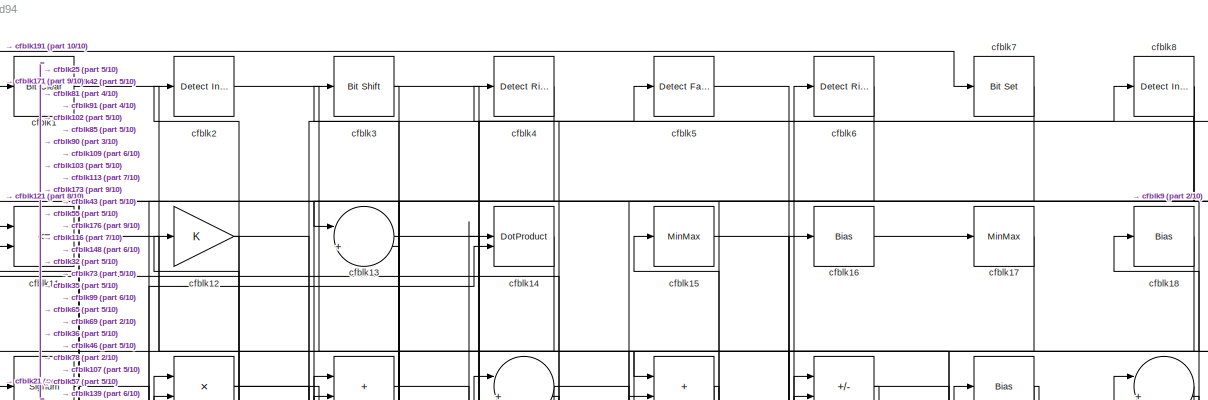
[diagram: root canvas - part 1/10, full width, top band]
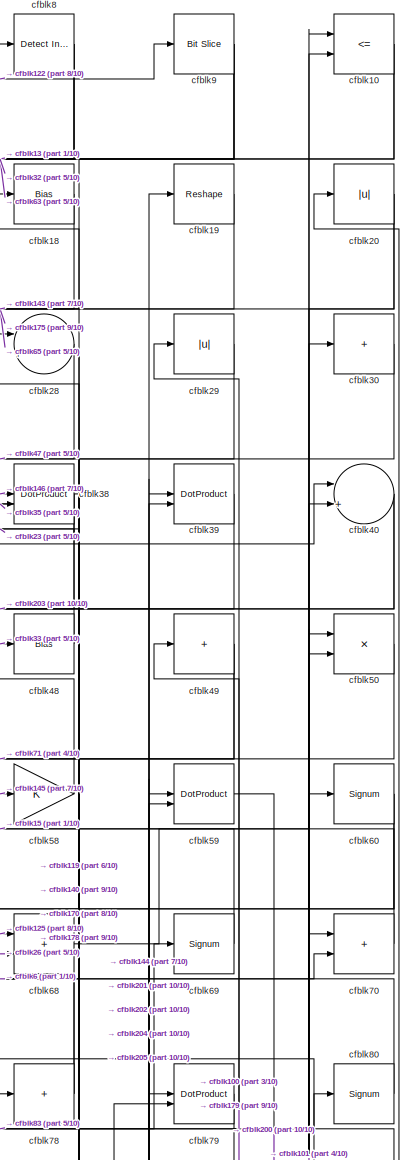
[diagram: root canvas - part 2/10, top right region]
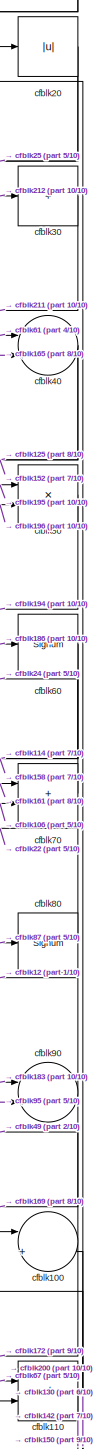
[diagram: root canvas - part 3/10, top right region]
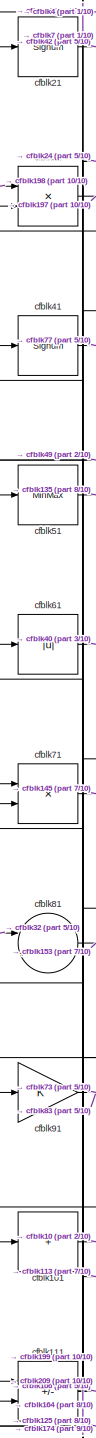
[diagram: root canvas - part 4/10, top left region]
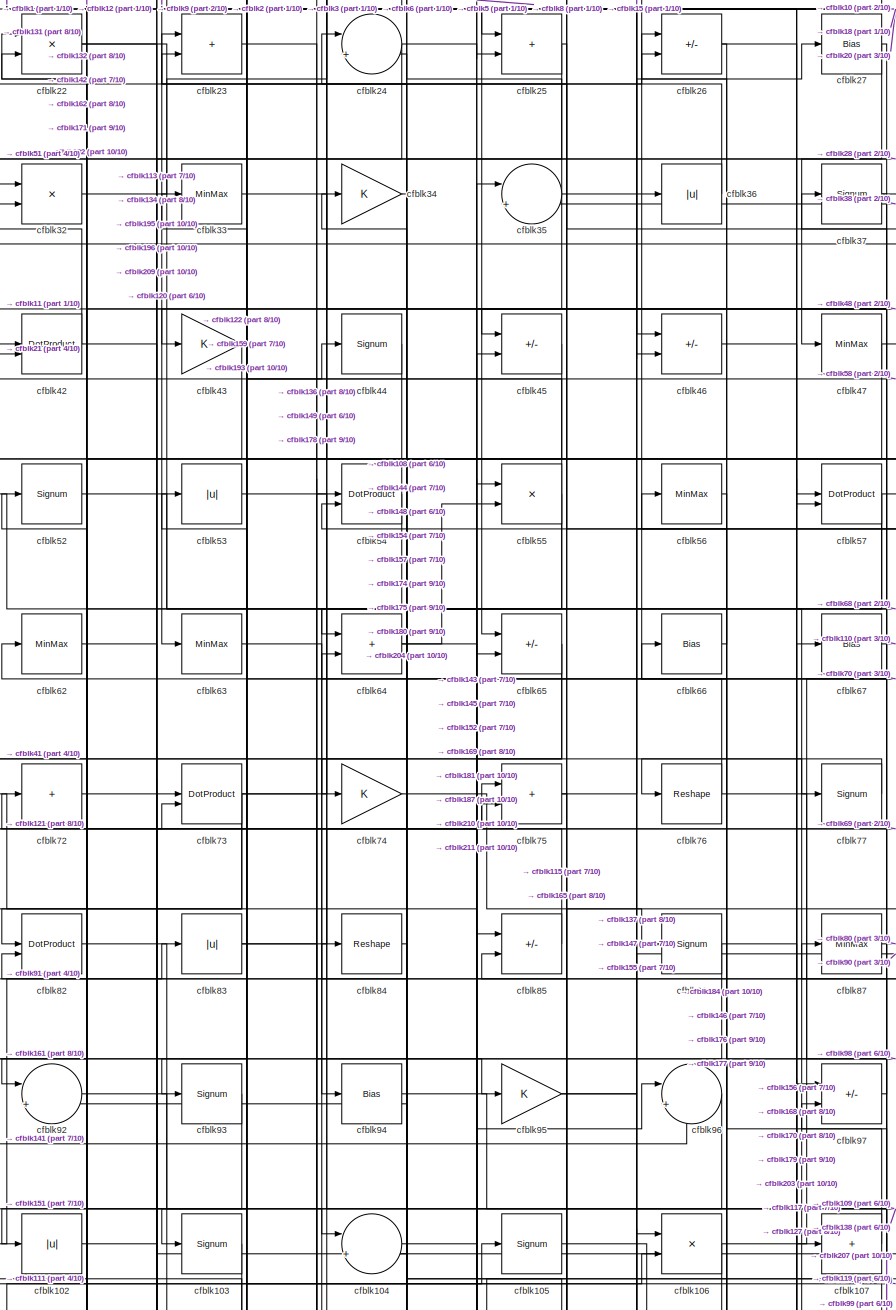
[diagram: root canvas - part 5/10, top center region]
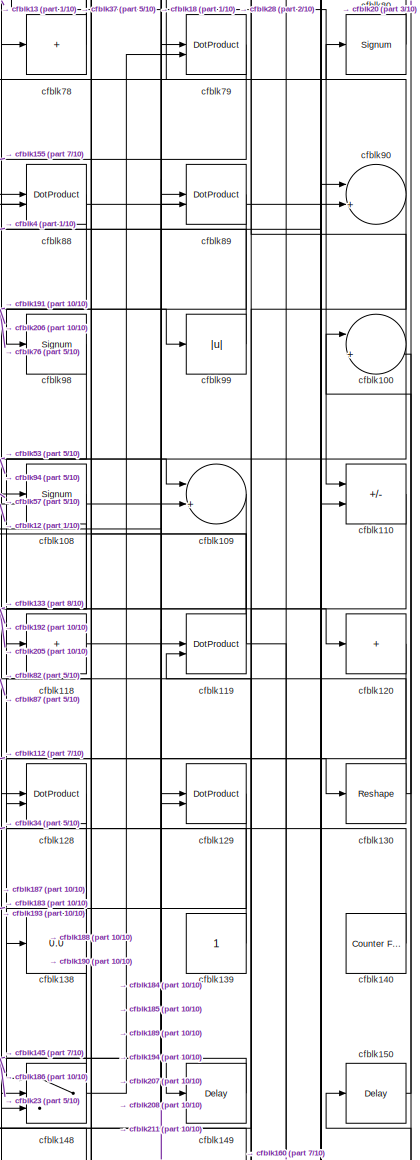
[diagram: root canvas - part 6/10, middle right region]
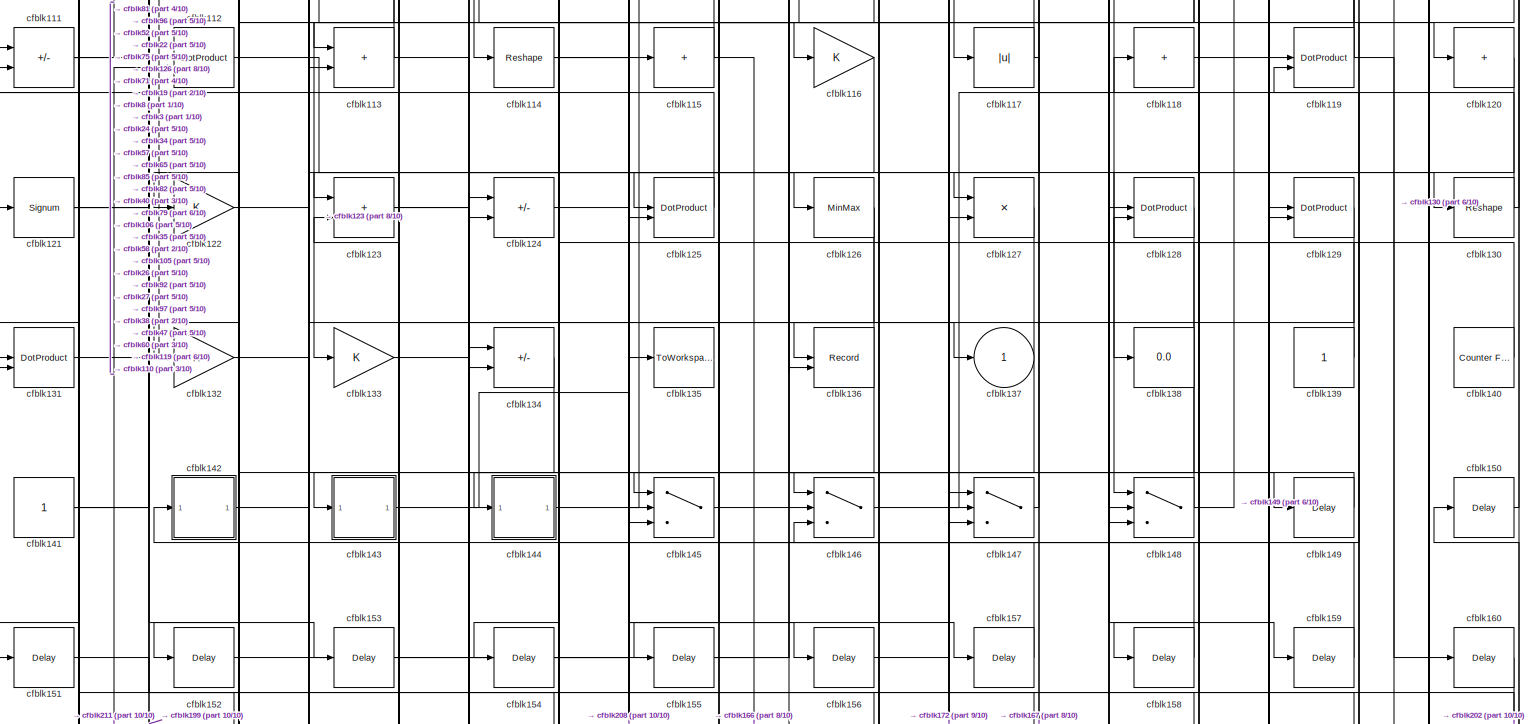
[diagram: root canvas - part 7/10, full width, middle band]
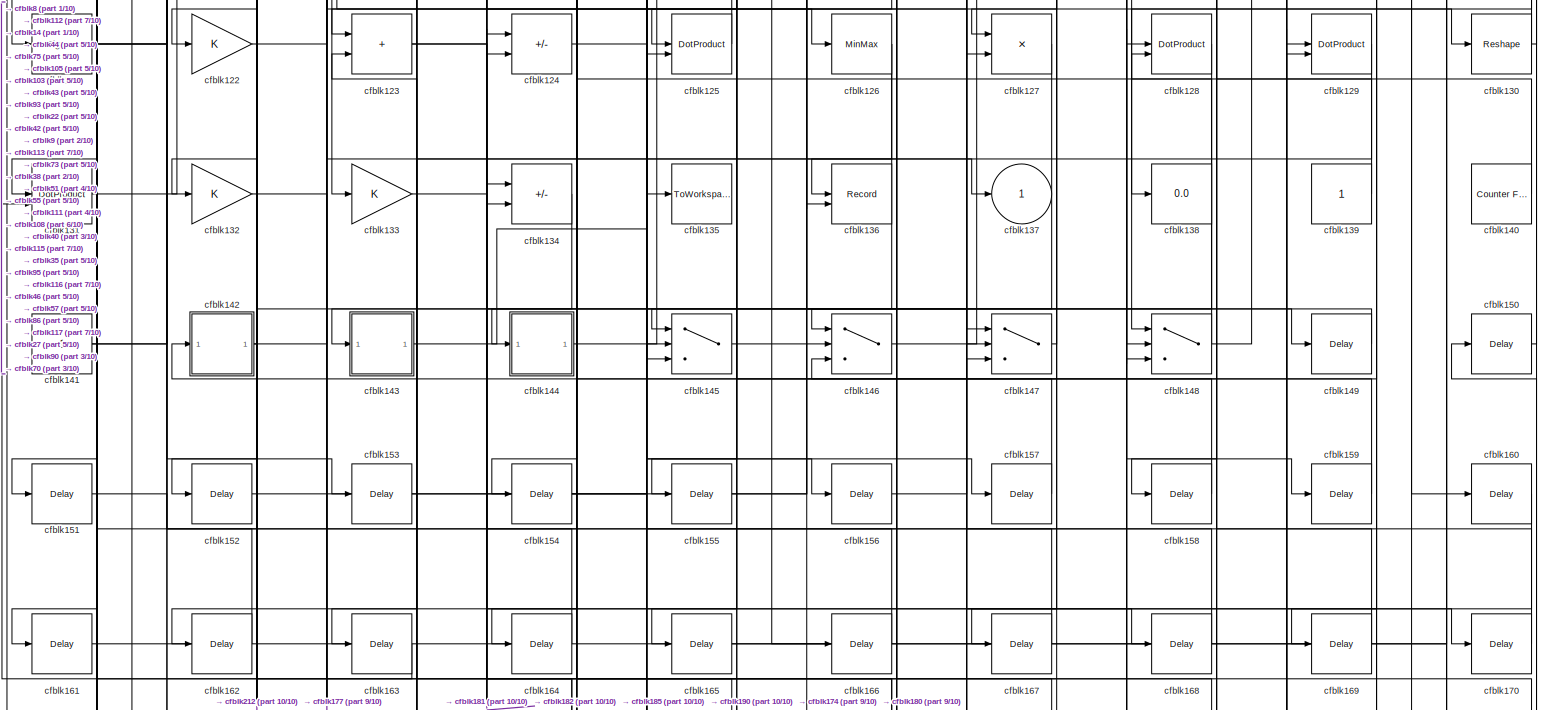
[diagram: root canvas - part 8/10, full width, middle band]
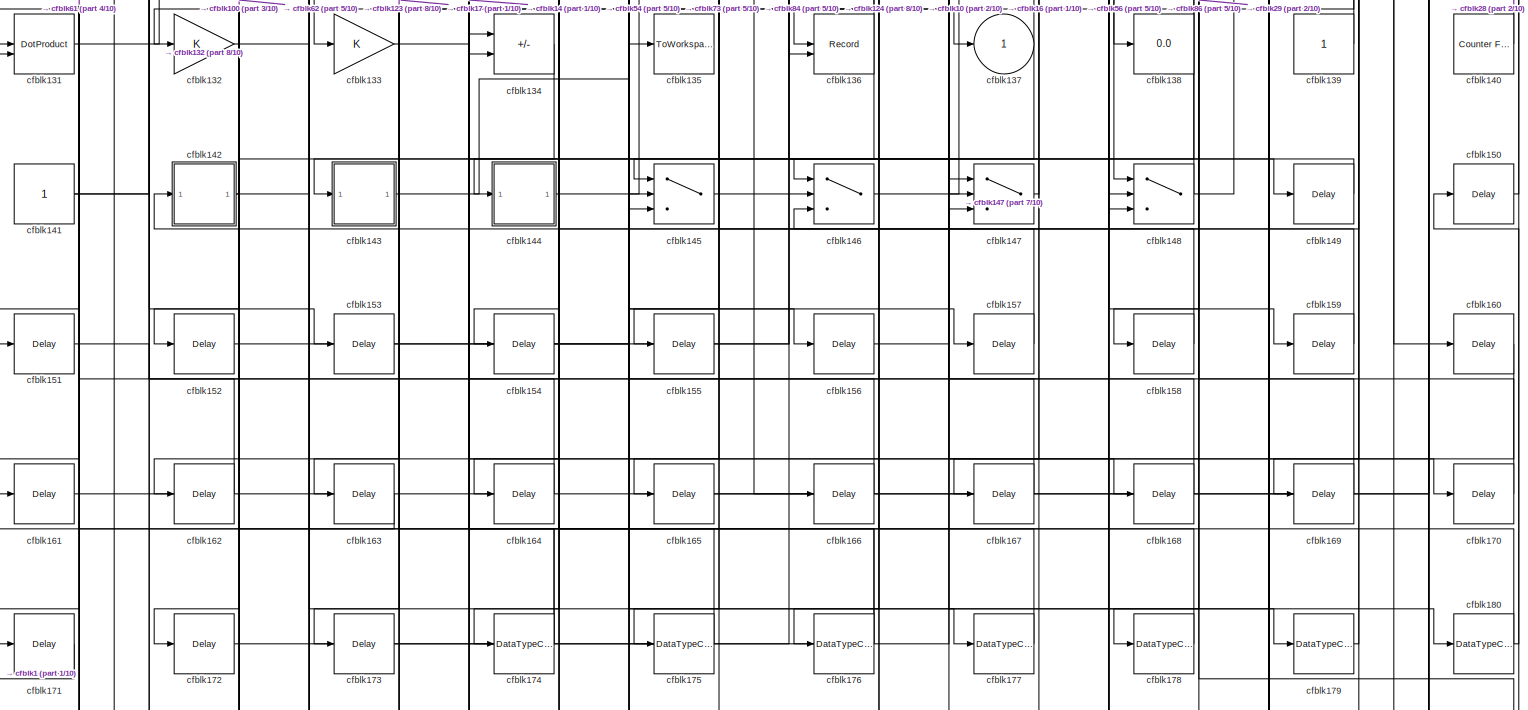
[diagram: root canvas - part 9/10, full width, bottom band]
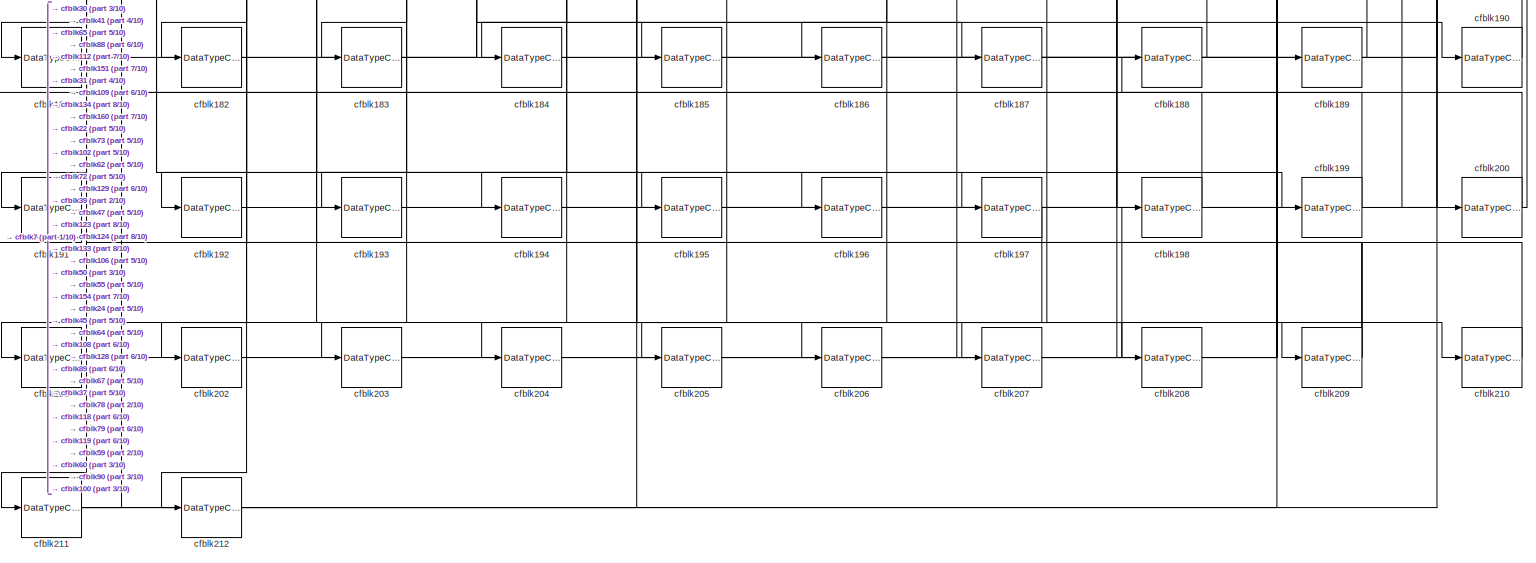
[diagram: root canvas - part 10/10, full width, bottom band]
MODEL slx_9917ec76bd94
KIND model
CONFIG AbsTol = auto
CONFIG EnableMultiTasking = off
CONFIG FixedStep = auto
CONFIG MaxStep = auto
CONFIG MinStep = auto
CONFIG RelTol = 1e-3
CONFIG SampleTimeConstraint = Unconstrained
CONFIG SolverName = VariableStepAuto
CONFIG StartTime = 0.0
CONFIG StopTime = 10.0
BLOCK [Reference] cfblk1  REF=simulink/Logic and Bit
Operations/Bit Clear
  LibrarySourceBlock = hdlsllib/Logic and Bit\nOperations/Bit Clear
  SourceBlock = simulink/Logic and Bit\nOperations/Bit Clear
  SourceType = Bit Clear
BLOCK [RelationalOperator] cfblk10
  InputSameDT = off
  Operator = <=
  OutDataTypeStr = boolean
BLOCK [Sum] cfblk100
  Inputs = |++
BLOCK [Sum] cfblk101
  IconShape = rectangular
  Inputs = +
BLOCK [Abs] cfblk102
  SaturateOnIntegerOverflow = off
BLOCK [Signum] cfblk103
BLOCK [Sum] cfblk104
  Inputs = |++
BLOCK [Signum] cfblk105
BLOCK [Product] cfblk106
  Inputs = */
  RndMeth = Zero
  SaturateOnIntegerOverflow = on
BLOCK [Sum] cfblk107
  IconShape = rectangular
  Inputs = +
BLOCK [Signum] cfblk108
BLOCK [Sum] cfblk109
  Inputs = |++
BLOCK [RelationalOperator] cfblk11
  InputSameDT = off
  Operator = <=
  OutDataTypeStr = boolean
BLOCK [Sum] cfblk110
  IconShape = rectangular
  Inputs = +-
BLOCK [Sum] cfblk111
  IconShape = rectangular
  Inputs = +-
BLOCK [DotProduct] cfblk112
  OutDataTypeStr = Inherit: Inherit via internal rule
BLOCK [Sum] cfblk113
  IconShape = rectangular
BLOCK [Reshape] cfblk114
BLOCK [Sum] cfblk115
  IconShape = rectangular
  Inputs = +
BLOCK [Gain] cfblk116
BLOCK [Abs] cfblk117
  SaturateOnIntegerOverflow = off
BLOCK [Sum] cfblk118
  IconShape = rectangular
  Inputs = +
BLOCK [DotProduct] cfblk119
  OutDataTypeStr = Inherit: Inherit via internal rule
BLOCK [Gain] cfblk12
BLOCK [Sum] cfblk120
  IconShape = rectangular
  Inputs = +
BLOCK [Signum] cfblk121
BLOCK [Gain] cfblk122
BLOCK [Sum] cfblk123
  IconShape = rectangular
BLOCK [Sum] cfblk124
  IconShape = rectangular
  Inputs = +-
BLOCK [DotProduct] cfblk125
  OutDataTypeStr = Inherit: Inherit via internal rule
BLOCK [MinMax] cfblk126
BLOCK [Product] cfblk127
  Inputs = */
  RndMeth = Zero
  SaturateOnIntegerOverflow = on
BLOCK [DotProduct] cfblk128
  OutDataTypeStr = Inherit: Inherit via internal rule
BLOCK [DotProduct] cfblk129
  OutDataTypeStr = Inherit: Inherit via internal rule
BLOCK [Sum] cfblk13
  Inputs = |++
BLOCK [Reshape] cfblk130
BLOCK [DotProduct] cfblk131
  OutDataTypeStr = Inherit: Inherit via internal rule
BLOCK [Gain] cfblk132
BLOCK [Gain] cfblk133
BLOCK [Sum] cfblk134
  IconShape = rectangular
  Inputs = +-
BLOCK [ToWorkspace] cfblk135
  MaxDataPoints = inf
  SampleTime = -1
  SaveFormat = Timeseries
  VariableName = simout
BLOCK [Record] cfblk136
  CompatibilityTag = XY
  FileSettingsInternal = {"entries":[{"content":{"excelSettings":{"content":{},"type":"Streamout.ExcelSettings"}},"type":"Streamout.FileSettingStorage","uuid":""}],"packageUris":["http:\/\/schema.mathworks.com\/mf0\/streamout_blocks\/R2020a"],"version":"1.0"}
  Layout = [1 1]
  SignalsInternal = {"entries":[{"content":{"signals":[{"content":{"blockPath":[],"dimensions":[1],"domain":"","lineColor":"#a2142f","plots":[1],"port":1,"signalID":1913,"signalName":"XY Graph:1"},"type":"RecordBlkView.Signal","uuid":""},{"content":{"blockPath":[],"dimensions":[1],"domain":"","lineColor":"#139fff","plots":[1],"port":2,"signalID":1916,"signalName":"XY Graph:2"},"type":"RecordBlkView.Signal","uuid":""}...<+146ch>
  VisualizationBindings = {"xyplotplugin":{"info":[{"series":[{"bindingParametersList":[{"parameter":"X-Axis","signalID":1913,"signalName":"XY Graph:1"},{"parameter":"Y-Axis","signalID":1916,"signalName":"XY Graph:2"}],"seriesID":59425}],"subplotID":1}]}}
  st = -1
BLOCK [Outport] cfblk137
  VectorParamsAs1DForOutWhenUnconnected = off
BLOCK [Display] cfblk138
  Decimation = 1
BLOCK [Constant] cfblk139
  SampleTime = -1
BLOCK [DotProduct] cfblk14
  OutDataTypeStr = Inherit: Inherit via internal rule
BLOCK [Reference] cfblk140  REF=hdlsllib/Sources/Counter
Free-Running
  SourceBlock = hdlsllib/Sources/Counter\nFree-Running
  SourceType = Counter Free-Running
BLOCK [Constant] cfblk141
  SampleTime = -1
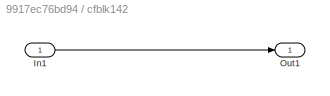
BLOCK [SubSystem] cfblk142
  LibrarySourceBlock = hdlsllib/Ports &\nSubsystems/Subsystem
BLOCK [Inport] cfblk142/In1
BLOCK [Outport] cfblk142/Out1
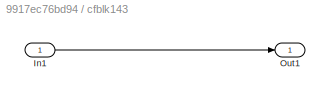
BLOCK [SubSystem] cfblk143
  LibrarySourceBlock = hdlsllib/Ports &\nSubsystems/Subsystem
BLOCK [Inport] cfblk143/In1
BLOCK [Outport] cfblk143/Out1
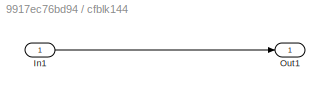
BLOCK [SubSystem] cfblk144
  LibrarySourceBlock = hdlsllib/Ports &\nSubsystems/Subsystem
BLOCK [Inport] cfblk144/In1
BLOCK [Outport] cfblk144/Out1
BLOCK [Switch] cfblk145
  InputSameDT = off
  SaturateOnIntegerOverflow = off
BLOCK [Switch] cfblk146
  InputSameDT = off
  SaturateOnIntegerOverflow = off
BLOCK [Switch] cfblk147
  InputSameDT = off
  SaturateOnIntegerOverflow = off
BLOCK [Switch] cfblk148
  InputSameDT = off
  SaturateOnIntegerOverflow = off
BLOCK [Delay] cfblk149
  InputPortMap = u0
  SampleTime = 1
BLOCK [MinMax] cfblk15
BLOCK [Delay] cfblk150
  InputPortMap = u0
  SampleTime = 1
BLOCK [Delay] cfblk151
  InputPortMap = u0
  SampleTime = 1
BLOCK [Delay] cfblk152
  InputPortMap = u0
  SampleTime = 1
BLOCK [Delay] cfblk153
  InputPortMap = u0
  SampleTime = 1
BLOCK [Delay] cfblk154
  InputPortMap = u0
  SampleTime = 1
BLOCK [Delay] cfblk155
  InputPortMap = u0
  SampleTime = 1
BLOCK [Delay] cfblk156
  InputPortMap = u0
  SampleTime = 1
BLOCK [Delay] cfblk157
  InputPortMap = u0
  SampleTime = 1
BLOCK [Delay] cfblk158
  InputPortMap = u0
  SampleTime = 1
BLOCK [Delay] cfblk159
  InputPortMap = u0
  SampleTime = 1
BLOCK [Bias] cfblk16
  Bias = 0.0
  SaturateOnIntegerOverflow = off
BLOCK [Delay] cfblk160
  InputPortMap = u0
  SampleTime = 1
BLOCK [Delay] cfblk161
  InputPortMap = u0
  SampleTime = 1
BLOCK [Delay] cfblk162
  InputPortMap = u0
  SampleTime = 1
BLOCK [Delay] cfblk163
  InputPortMap = u0
  SampleTime = 1
BLOCK [Delay] cfblk164
  InputPortMap = u0
  SampleTime = 1
BLOCK [Delay] cfblk165
  InputPortMap = u0
  SampleTime = 1
BLOCK [Delay] cfblk166
  InputPortMap = u0
  SampleTime = 1
BLOCK [Delay] cfblk167
  InputPortMap = u0
  SampleTime = 1
BLOCK [Delay] cfblk168
  InputPortMap = u0
  SampleTime = 1
BLOCK [Delay] cfblk169
  InputPortMap = u0
  SampleTime = 1
BLOCK [MinMax] cfblk17
BLOCK [Delay] cfblk170
  InputPortMap = u0
  SampleTime = 1
BLOCK [Delay] cfblk171
  InputPortMap = u0
  SampleTime = 1
BLOCK [Delay] cfblk172
  InputPortMap = u0
  SampleTime = 1
BLOCK [Delay] cfblk173
  InputPortMap = u0
  SampleTime = 1
BLOCK [DataTypeConversion] cfblk174
  RndMeth = Floor
  SaturateOnIntegerOverflow = off
BLOCK [DataTypeConversion] cfblk175
  OutDataTypeStr = uint8
  RndMeth = Floor
  SaturateOnIntegerOverflow = off
BLOCK [DataTypeConversion] cfblk176
  RndMeth = Floor
  SaturateOnIntegerOverflow = off
BLOCK [DataTypeConversion] cfblk177
  OutDataTypeStr = uint8
  RndMeth = Floor
  SaturateOnIntegerOverflow = off
BLOCK [DataTypeConversion] cfblk178
  OutDataTypeStr = uint8
  RndMeth = Floor
  SaturateOnIntegerOverflow = off
BLOCK [DataTypeConversion] cfblk179
  OutDataTypeStr = uint8
  RndMeth = Floor
  SaturateOnIntegerOverflow = off
BLOCK [Bias] cfblk18
  Bias = 0.0
  SaturateOnIntegerOverflow = off
BLOCK [DataTypeConversion] cfblk180
  RndMeth = Floor
  SaturateOnIntegerOverflow = off
BLOCK [DataTypeConversion] cfblk181
  OutDataTypeStr = uint8
  RndMeth = Floor
  SaturateOnIntegerOverflow = off
BLOCK [DataTypeConversion] cfblk182
  OutDataTypeStr = uint8
  RndMeth = Floor
  SaturateOnIntegerOverflow = off
BLOCK [DataTypeConversion] cfblk183
  OutDataTypeStr = uint8
  RndMeth = Floor
  SaturateOnIntegerOverflow = off
BLOCK [DataTypeConversion] cfblk184
  OutDataTypeStr = uint8
  RndMeth = Floor
  SaturateOnIntegerOverflow = off
BLOCK [DataTypeConversion] cfblk185
  OutDataTypeStr = uint8
  RndMeth = Floor
  SaturateOnIntegerOverflow = off
BLOCK [DataTypeConversion] cfblk186
  OutDataTypeStr = uint8
  RndMeth = Floor
  SaturateOnIntegerOverflow = off
BLOCK [DataTypeConversion] cfblk187
  OutDataTypeStr = uint8
  RndMeth = Floor
  SaturateOnIntegerOverflow = off
BLOCK [DataTypeConversion] cfblk188
  OutDataTypeStr = uint8
  RndMeth = Floor
  SaturateOnIntegerOverflow = off
BLOCK [DataTypeConversion] cfblk189
  OutDataTypeStr = uint8
  RndMeth = Floor
  SaturateOnIntegerOverflow = off
BLOCK [Reshape] cfblk19
BLOCK [DataTypeConversion] cfblk190
  OutDataTypeStr = uint8
  RndMeth = Floor
  SaturateOnIntegerOverflow = off
BLOCK [DataTypeConversion] cfblk191
  OutDataTypeStr = uint8
  RndMeth = Floor
  SaturateOnIntegerOverflow = off
BLOCK [DataTypeConversion] cfblk192
  OutDataTypeStr = uint8
  RndMeth = Floor
  SaturateOnIntegerOverflow = off
BLOCK [DataTypeConversion] cfblk193
  OutDataTypeStr = uint8
  RndMeth = Floor
  SaturateOnIntegerOverflow = off
BLOCK [DataTypeConversion] cfblk194
  OutDataTypeStr = uint8
  RndMeth = Floor
  SaturateOnIntegerOverflow = off
BLOCK [DataTypeConversion] cfblk195
  OutDataTypeStr = uint8
  RndMeth = Floor
  SaturateOnIntegerOverflow = off
BLOCK [DataTypeConversion] cfblk196
  OutDataTypeStr = uint8
  RndMeth = Floor
  SaturateOnIntegerOverflow = off
BLOCK [DataTypeConversion] cfblk197
  OutDataTypeStr = uint8
  RndMeth = Floor
  SaturateOnIntegerOverflow = off
BLOCK [DataTypeConversion] cfblk198
  OutDataTypeStr = uint8
  RndMeth = Floor
  SaturateOnIntegerOverflow = off
BLOCK [DataTypeConversion] cfblk199
  OutDataTypeStr = uint8
  RndMeth = Floor
  SaturateOnIntegerOverflow = off
BLOCK [Reference] cfblk2  REF=simulink/Logic and Bit
Operations/Detect
Increase
  LibrarySourceBlock = hdlsllib/Logic and Bit\nOperations/Detect\nIncrease
  SourceBlock = simulink/Logic and Bit\nOperations/Detect\nIncrease
  SourceType = Detect Increase
BLOCK [Abs] cfblk20
  SaturateOnIntegerOverflow = off
BLOCK [DataTypeConversion] cfblk200
  RndMeth = Floor
  SaturateOnIntegerOverflow = off
BLOCK [DataTypeConversion] cfblk201
  OutDataTypeStr = uint8
  RndMeth = Floor
  SaturateOnIntegerOverflow = off
BLOCK [DataTypeConversion] cfblk202
  OutDataTypeStr = uint8
  RndMeth = Floor
  SaturateOnIntegerOverflow = off
BLOCK [DataTypeConversion] cfblk203
  RndMeth = Floor
  SaturateOnIntegerOverflow = off
BLOCK [DataTypeConversion] cfblk204
  OutDataTypeStr = uint8
  RndMeth = Floor
  SaturateOnIntegerOverflow = off
BLOCK [DataTypeConversion] cfblk205
  OutDataTypeStr = uint8
  RndMeth = Floor
  SaturateOnIntegerOverflow = off
BLOCK [DataTypeConversion] cfblk206
  OutDataTypeStr = uint8
  RndMeth = Floor
  SaturateOnIntegerOverflow = off
BLOCK [DataTypeConversion] cfblk207
  OutDataTypeStr = uint8
  RndMeth = Floor
  SaturateOnIntegerOverflow = off
BLOCK [DataTypeConversion] cfblk208
  OutDataTypeStr = uint8
  RndMeth = Floor
  SaturateOnIntegerOverflow = off
BLOCK [DataTypeConversion] cfblk209
  RndMeth = Floor
  SaturateOnIntegerOverflow = off
BLOCK [Signum] cfblk21
BLOCK [DataTypeConversion] cfblk210
  OutDataTypeStr = uint8
  RndMeth = Floor
  SaturateOnIntegerOverflow = off
BLOCK [DataTypeConversion] cfblk211
  RndMeth = Floor
  SaturateOnIntegerOverflow = off
BLOCK [DataTypeConversion] cfblk212
  OutDataTypeStr = uint8
  RndMeth = Floor
  SaturateOnIntegerOverflow = off
BLOCK [Product] cfblk22
  Inputs = */
  RndMeth = Zero
  SaturateOnIntegerOverflow = on
BLOCK [Sum] cfblk23
  IconShape = rectangular
BLOCK [Sum] cfblk24
  Inputs = |++
BLOCK [Sum] cfblk25
  IconShape = rectangular
BLOCK [Sum] cfblk26
  IconShape = rectangular
  Inputs = +-
BLOCK [Bias] cfblk27
  Bias = 0.0
  SaturateOnIntegerOverflow = off
BLOCK [Sum] cfblk28
  Inputs = |++
BLOCK [Abs] cfblk29
  SaturateOnIntegerOverflow = off
BLOCK [Reference] cfblk3  REF=hdlsllib/Logic and Bit
Operations/Bit Shift
  SourceBlock = hdlsllib/Logic and Bit\nOperations/Bit Shift
  SourceType = Bit Shift
BLOCK [Sum] cfblk30
  IconShape = rectangular
  Inputs = +
BLOCK [Product] cfblk31
  Inputs = */
  RndMeth = Zero
  SaturateOnIntegerOverflow = on
BLOCK [Product] cfblk32
  Inputs = */
  RndMeth = Zero
  SaturateOnIntegerOverflow = on
BLOCK [MinMax] cfblk33
BLOCK [Gain] cfblk34
BLOCK [Sum] cfblk35
  Inputs = |++
BLOCK [Abs] cfblk36
  SaturateOnIntegerOverflow = off
BLOCK [Signum] cfblk37
BLOCK [DotProduct] cfblk38
  OutDataTypeStr = Inherit: Inherit via internal rule
BLOCK [DotProduct] cfblk39
  OutDataTypeStr = Inherit: Inherit via internal rule
BLOCK [Reference] cfblk4  REF=hdlsllib/Logic and Bit
Operations/Detect Rise
Nonnegative
  SourceBlock = hdlsllib/Logic and Bit\nOperations/Detect Rise\nNonnegative
  SourceType = Detect Rise Nonnegative
BLOCK [Sum] cfblk40
  Inputs = |++
BLOCK [Signum] cfblk41
BLOCK [DotProduct] cfblk42
  OutDataTypeStr = Inherit: Inherit via internal rule
BLOCK [Gain] cfblk43
BLOCK [Signum] cfblk44
BLOCK [Sum] cfblk45
  IconShape = rectangular
  Inputs = +-
BLOCK [Sum] cfblk46
  IconShape = rectangular
  Inputs = +-
BLOCK [MinMax] cfblk47
BLOCK [Bias] cfblk48
  Bias = 0.0
  SaturateOnIntegerOverflow = off
BLOCK [Sum] cfblk49
  IconShape = rectangular
  Inputs = +
BLOCK [Reference] cfblk5  REF=hdlsllib/Logic and Bit
Operations/Detect Fall
Negative
  SourceBlock = hdlsllib/Logic and Bit\nOperations/Detect Fall\nNegative
  SourceType = Detect Fall Negative
BLOCK [Product] cfblk50
  Inputs = */
  RndMeth = Zero
  SaturateOnIntegerOverflow = on
BLOCK [MinMax] cfblk51
BLOCK [Signum] cfblk52
BLOCK [Abs] cfblk53
  SaturateOnIntegerOverflow = off
BLOCK [DotProduct] cfblk54
  OutDataTypeStr = Inherit: Inherit via internal rule
BLOCK [Product] cfblk55
  Inputs = */
  RndMeth = Zero
  SaturateOnIntegerOverflow = on
BLOCK [MinMax] cfblk56
BLOCK [DotProduct] cfblk57
  OutDataTypeStr = Inherit: Inherit via internal rule
BLOCK [Gain] cfblk58
BLOCK [DotProduct] cfblk59
  OutDataTypeStr = Inherit: Inherit via internal rule
BLOCK [Reference] cfblk6  REF=hdlsllib/Logic and Bit
Operations/Detect Rise
Positive
  SourceBlock = hdlsllib/Logic and Bit\nOperations/Detect Rise\nPositive
  SourceType = Detect Rise Positive
BLOCK [Signum] cfblk60
BLOCK [Abs] cfblk61
  SaturateOnIntegerOverflow = off
BLOCK [MinMax] cfblk62
BLOCK [MinMax] cfblk63
BLOCK [Sum] cfblk64
  IconShape = rectangular
BLOCK [Sum] cfblk65
  IconShape = rectangular
  Inputs = +-
BLOCK [Bias] cfblk66
  Bias = 0.0
  SaturateOnIntegerOverflow = off
BLOCK [Bias] cfblk67
  Bias = 0.0
  SaturateOnIntegerOverflow = off
BLOCK [Sum] cfblk68
  IconShape = rectangular
BLOCK [Signum] cfblk69
BLOCK [Reference] cfblk7  REF=simulink/Logic and Bit
Operations/Bit Set
  LibrarySourceBlock = hdlsllib/Logic and Bit\nOperations/Bit Set
  SourceBlock = simulink/Logic and Bit\nOperations/Bit Set
  SourceType = Bit Set
BLOCK [Sum] cfblk70
  IconShape = rectangular
BLOCK [Product] cfblk71
  Inputs = */
  RndMeth = Zero
  SaturateOnIntegerOverflow = on
BLOCK [Sum] cfblk72
  IconShape = rectangular
  Inputs = +
BLOCK [DotProduct] cfblk73
  OutDataTypeStr = Inherit: Inherit via internal rule
BLOCK [Gain] cfblk74
BLOCK [Sum] cfblk75
  IconShape = rectangular
BLOCK [Reshape] cfblk76
BLOCK [Signum] cfblk77
BLOCK [Sum] cfblk78
  IconShape = rectangular
  Inputs = +
BLOCK [DotProduct] cfblk79
  OutDataTypeStr = Inherit: Inherit via internal rule
BLOCK [Reference] cfblk8  REF=simulink/Logic and Bit
Operations/Detect
Increase
  LibrarySourceBlock = hdlsllib/Logic and Bit\nOperations/Detect\nIncrease
  SourceBlock = simulink/Logic and Bit\nOperations/Detect\nIncrease
  SourceType = Detect Increase
BLOCK [Signum] cfblk80
BLOCK [Sum] cfblk81
  Inputs = |++
BLOCK [DotProduct] cfblk82
  OutDataTypeStr = Inherit: Inherit via internal rule
BLOCK [Abs] cfblk83
  SaturateOnIntegerOverflow = off
BLOCK [Reshape] cfblk84
BLOCK [Sum] cfblk85
  IconShape = rectangular
  Inputs = +-
BLOCK [Signum] cfblk86
BLOCK [MinMax] cfblk87
BLOCK [DotProduct] cfblk88
  OutDataTypeStr = Inherit: Inherit via internal rule
BLOCK [DotProduct] cfblk89
  OutDataTypeStr = Inherit: Inherit via internal rule
BLOCK [Reference] cfblk9  REF=hdlsllib/Logic and Bit
Operations/Bit Slice
  SourceBlock = hdlsllib/Logic and Bit\nOperations/Bit Slice
  SourceType = Bit Slice
BLOCK [Sum] cfblk90
  Inputs = |++
BLOCK [Gain] cfblk91
BLOCK [Sum] cfblk92
  Inputs = |++
BLOCK [Signum] cfblk93
BLOCK [Bias] cfblk94
  Bias = 0.0
  SaturateOnIntegerOverflow = off
BLOCK [Gain] cfblk95
BLOCK [Sum] cfblk96
  Inputs = |++
BLOCK [Sum] cfblk97
  IconShape = rectangular
  Inputs = +-
BLOCK [Signum] cfblk98
BLOCK [Abs] cfblk99
  SaturateOnIntegerOverflow = off
NET cfblk100:1 -> cfblk172:1, cfblk49:1
LINE cfblk101:1 -> cfblk10:1
LINE cfblk102:1 -> cfblk195:1
LINE cfblk103:1 -> cfblk122:1
LINE cfblk104:1 -> cfblk96:1
LINE cfblk105:1 -> cfblk147:1
NET cfblk106:1 -> cfblk184:1, cfblk70:2
LINE cfblk107:1 -> cfblk66:1
NET cfblk108:1 -> cfblk133:1, cfblk205:1
LINE cfblk109:1 -> cfblk192:1
NET cfblk10:1 -> cfblk175:1, cfblk65:1
LINE cfblk110:1 -> cfblk142:1
NET cfblk111:1 -> cfblk106:2, cfblk32:1, cfblk81:1
LINE cfblk112:1 -> cfblk130:1
NET cfblk113:1 -> cfblk126:1, cfblk71:1
NET cfblk114:1 -> cfblk156:1, cfblk157:1
NET cfblk115:1 -> cfblk166:1, cfblk82:2
LINE cfblk116:1 -> cfblk123:1
NET cfblk117:1 -> cfblk167:1, cfblk92:2
LINE cfblk118:1 -> cfblk189:1
NET cfblk119:1 -> cfblk160:1, cfblk28:1, cfblk53:1
LINE cfblk11:1 -> cfblk25:1
LINE cfblk120:1 -> cfblk148:1
NET cfblk121:1 -> cfblk14:2, cfblk44:1, cfblk75:1
LINE cfblk122:1 -> cfblk9:1
NET cfblk123:1 -> cfblk168:1, cfblk185:1
LINE cfblk124:1 -> cfblk180:1
LINE cfblk125:1 -> cfblk111:1
NET cfblk126:1 -> cfblk136:1, cfblk164:1
LINE cfblk127:1 -> cfblk163:1
LINE cfblk128:1 -> cfblk186:1
LINE cfblk129:1 -> cfblk183:1
NET cfblk12:1 -> cfblk102:1, cfblk109:2
NET cfblk130:1 -> cfblk20:1, cfblk87:1
LINE cfblk131:1 -> cfblk105:1
LINE cfblk132:1 -> cfblk177:1
LINE cfblk133:1 -> cfblk190:1
LINE cfblk134:1 -> cfblk212:1
LINE cfblk139:1 -> cfblk18:1
LINE cfblk13:1 -> cfblk148:3
LINE cfblk140:1 -> cfblk28:2
NET cfblk141:1 -> cfblk26:2, cfblk96:2
LINE cfblk142/In1:1 -> cfblk142/Out1:1
NET cfblk142:1 -> cfblk52:1, cfblk75:2
LINE cfblk143/In1:1 -> cfblk143/Out1:1
LINE cfblk143:1 -> cfblk85:1
LINE cfblk144/In1:1 -> cfblk144/Out1:1
LINE cfblk144:1 -> cfblk19:1
LINE cfblk145:1 -> cfblk58:1
LINE cfblk146:1 -> cfblk38:1
LINE cfblk147:1 -> cfblk97:2
NET cfblk148:1 -> cfblk34:1, cfblk79:2
LINE cfblk149:1 -> cfblk145:1
LINE cfblk14:1 -> cfblk21:1
LINE cfblk150:1 -> cfblk100:2
LINE cfblk151:1 -> cfblk199:1
LINE cfblk152:1 -> cfblk35:1
LINE cfblk153:1 -> cfblk146:2
LINE cfblk154:1 -> cfblk208:1
LINE cfblk155:1 -> cfblk106:1
LINE cfblk156:1 -> cfblk97:1
LINE cfblk157:1 -> cfblk24:2
LINE cfblk158:1 -> cfblk146:3
LINE cfblk159:1 -> cfblk85:2
LINE cfblk15:1 -> cfblk36:1
LINE cfblk160:1 -> cfblk202:1
LINE cfblk161:1 -> cfblk70:1
LINE cfblk162:1 -> cfblk42:1
LINE cfblk163:1 -> cfblk131:2
LINE cfblk164:1 -> cfblk111:2
LINE cfblk165:1 -> cfblk40:2
LINE cfblk166:1 -> cfblk112:1
LINE cfblk167:1 -> cfblk134:1
LINE cfblk168:1 -> cfblk57:1
LINE cfblk169:1 -> cfblk55:1
LINE cfblk16:1 -> cfblk17:1
LINE cfblk170:1 -> cfblk38:2
LINE cfblk171:1 -> cfblk1:1
LINE cfblk172:1 -> cfblk147:3
LINE cfblk173:1 -> cfblk16:1
NET cfblk174:1 -> cfblk123:2, cfblk61:1
LINE cfblk175:1 -> cfblk84:1
NET cfblk176:1 -> cfblk14:1, cfblk62:1
LINE cfblk177:1 -> cfblk56:1
LINE cfblk178:1 -> cfblk54:1
LINE cfblk179:1 -> cfblk29:1
LINE cfblk17:1 -> cfblk173:1
NET cfblk180:1 -> cfblk150:1, cfblk54:2
LINE cfblk181:1 -> cfblk124:1
LINE cfblk182:1 -> cfblk124:2
LINE cfblk183:1 -> cfblk90:1
LINE cfblk184:1 -> cfblk129:1
LINE cfblk185:1 -> cfblk129:2
LINE cfblk186:1 -> cfblk60:1
LINE cfblk187:1 -> cfblk128:1
LINE cfblk188:1 -> cfblk128:2
LINE cfblk189:1 -> cfblk119:2
LINE cfblk18:1 -> cfblk46:2
LINE cfblk190:1 -> cfblk118:1
LINE cfblk191:1 -> cfblk7:1
LINE cfblk192:1 -> cfblk88:1
LINE cfblk193:1 -> cfblk88:2
LINE cfblk194:1 -> cfblk119:1
LINE cfblk195:1 -> cfblk50:1
LINE cfblk196:1 -> cfblk50:2
LINE cfblk197:1 -> cfblk201:1
LINE cfblk198:1 -> cfblk31:1
LINE cfblk199:1 -> cfblk31:2
LINE cfblk19:1 -> cfblk143:1
LINE cfblk1:1 -> cfblk57:2
NET cfblk200:1 -> cfblk100:1, cfblk188:1
LINE cfblk201:1 -> cfblk59:1
LINE cfblk202:1 -> cfblk59:2
NET cfblk203:1 -> cfblk67:1, cfblk78:1
LINE cfblk204:1 -> cfblk39:1
LINE cfblk205:1 -> cfblk39:2
LINE cfblk206:1 -> cfblk198:1
LINE cfblk207:1 -> cfblk89:1
LINE cfblk208:1 -> cfblk89:2
NET cfblk209:1 -> cfblk22:2, cfblk41:1, cfblk73:1
NET cfblk20:1 -> cfblk110:2, cfblk25:2
LINE cfblk210:1 -> cfblk72:1
NET cfblk211:1 -> cfblk112:2, cfblk45:2, cfblk79:1
LINE cfblk212:1 -> cfblk30:1
LINE cfblk21:1 -> cfblk42:2
NET cfblk22:1 -> cfblk117:1, cfblk127:2
LINE cfblk23:1 -> cfblk149:1
NET cfblk24:1 -> cfblk210:1, cfblk51:1
NET cfblk25:1 -> cfblk45:1, cfblk74:1
NET cfblk26:1 -> cfblk146:1, cfblk68:2
NET cfblk27:1 -> cfblk113:2, cfblk127:1
LINE cfblk28:1 -> cfblk47:1
LINE cfblk29:1 -> cfblk178:1
LINE cfblk2:1 -> cfblk107:1
LINE cfblk30:1 -> cfblk211:1
LINE cfblk31:1 -> cfblk197:1
LINE cfblk32:1 -> cfblk8:1
LINE cfblk33:1 -> cfblk48:1
LINE cfblk34:1 -> cfblk154:1
NET cfblk35:1 -> cfblk11:2, cfblk131:1, cfblk147:2
LINE cfblk36:1 -> cfblk23:1
NET cfblk37:1 -> cfblk207:1, cfblk99:1
NET cfblk38:1 -> cfblk125:2, cfblk35:2, cfblk68:1
LINE cfblk39:1 -> cfblk203:1
NET cfblk3:1 -> cfblk103:1, cfblk116:1
NET cfblk40:1 -> cfblk125:1, cfblk152:1
LINE cfblk41:1 -> cfblk77:1
NET cfblk42:1 -> cfblk11:1, cfblk134:2
LINE cfblk43:1 -> cfblk132:1
LINE cfblk44:1 -> cfblk82:1
LINE cfblk45:1 -> cfblk93:1
LINE cfblk46:1 -> cfblk170:1
NET cfblk47:1 -> cfblk159:1, cfblk193:1
LINE cfblk48:1 -> cfblk23:2
NET cfblk49:1 -> cfblk101:1, cfblk71:2
LINE cfblk4:1 -> cfblk91:1
LINE cfblk50:1 -> cfblk194:1
LINE cfblk51:1 -> cfblk135:1
LINE cfblk52:1 -> cfblk115:1
LINE cfblk53:1 -> cfblk109:1
LINE cfblk54:1 -> cfblk92:1
NET cfblk55:1 -> cfblk104:2, cfblk204:1, cfblk3:1
LINE cfblk56:1 -> cfblk176:1
NET cfblk57:1 -> cfblk108:1, cfblk144:1, cfblk64:1
LINE cfblk58:1 -> cfblk33:1
LINE cfblk59:1 -> cfblk200:1
LINE cfblk5:1 -> cfblk46:1
NET cfblk60:1 -> cfblk114:1, cfblk158:1
LINE cfblk61:1 -> cfblk40:1
LINE cfblk62:1 -> cfblk196:1
LINE cfblk63:1 -> cfblk94:1
NET cfblk64:1 -> cfblk187:1, cfblk55:2
NET cfblk65:1 -> cfblk145:2, cfblk181:1
LINE cfblk66:1 -> cfblk26:1
LINE cfblk67:1 -> cfblk110:1
LINE cfblk68:1 -> cfblk10:2
LINE cfblk69:1 -> cfblk15:1
LINE cfblk6:1 -> cfblk43:1
LINE cfblk70:1 -> cfblk24:1
LINE cfblk71:1 -> cfblk145:3
LINE cfblk72:1 -> cfblk209:1
NET cfblk73:1 -> cfblk136:2, cfblk171:1, cfblk182:1, cfblk5:1
LINE cfblk74:1 -> cfblk86:1
NET cfblk75:1 -> cfblk165:1, cfblk27:1
NET cfblk76:1 -> cfblk64:2, cfblk98:1
LINE cfblk77:1 -> cfblk76:1
NET cfblk78:1 -> cfblk13:2, cfblk6:1
LINE cfblk79:1 -> cfblk155:1
LINE cfblk7:1 -> cfblk81:2
LINE cfblk80:1 -> cfblk22:1
LINE cfblk81:1 -> cfblk153:1
LINE cfblk82:1 -> cfblk120:1
NET cfblk83:1 -> cfblk69:1, cfblk95:1
LINE cfblk84:1 -> cfblk174:1
LINE cfblk85:1 -> cfblk2:1
NET cfblk86:1 -> cfblk161:1, cfblk179:1
LINE cfblk87:1 -> cfblk80:1
LINE cfblk88:1 -> cfblk191:1
LINE cfblk89:1 -> cfblk206:1
NET cfblk8:1 -> cfblk113:1, cfblk121:1, cfblk65:2
NET cfblk90:1 -> cfblk12:1, cfblk169:1
NET cfblk91:1 -> cfblk73:2, cfblk83:1
LINE cfblk92:1 -> cfblk104:1
LINE cfblk93:1 -> cfblk162:1
LINE cfblk94:1 -> cfblk138:1
NET cfblk95:1 -> cfblk137:1, cfblk90:2
LINE cfblk96:1 -> cfblk151:1
LINE cfblk97:1 -> cfblk37:1
LINE cfblk98:1 -> cfblk148:2
LINE cfblk99:1 -> cfblk4:1
NET cfblk9:1 -> cfblk13:1, cfblk32:2, cfblk63:1
note: NET lines group one-source signal fan-out (src -> all destinations, sorted); 1:1 wires keep LINE
